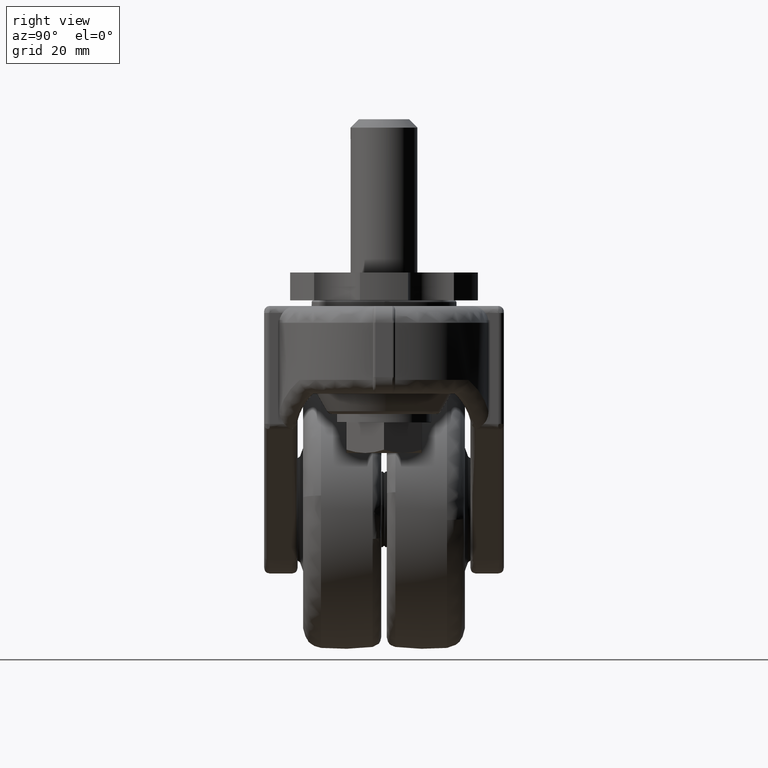
[diagram: clean part render]
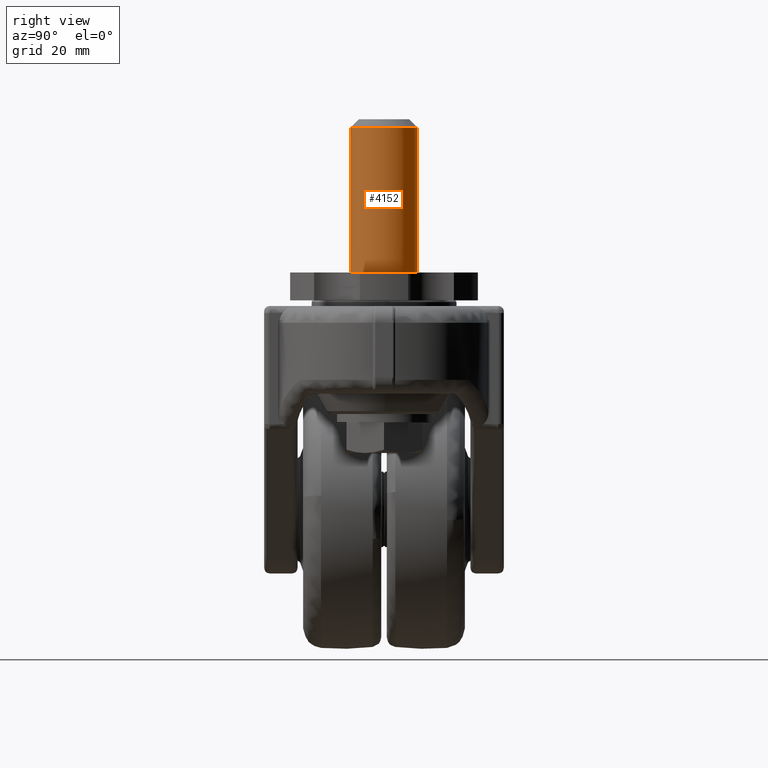
[diagram: same view with one face highlighted and labeled with its STEP entity id]
A machine part, right view. The second image highlights one B-rep face of the part: STEP entity #4152.
In plain terms, the highlighted face is a freeform B-spline surface patch.
Its self-contained STEP definition (entity closure, byte-faithful):
#3831=CARTESIAN_POINT('',(0.790828437082752,11.973912910343619,54.999999999941977));
#3832=VERTEX_POINT('',#3831);
#3833=CARTESIAN_POINT('',(12.0,0.0,55.0));
#3834=VERTEX_POINT('',#3833);
#3835=CARTESIAN_POINT('',(0.790828437082752,11.973912910343618,54.999999999941984));
#3836=CARTESIAN_POINT('',(12.000000000000002,11.233592540541867,54.999999999999993));
#3837=CARTESIAN_POINT('',(12.0,0.0,55.0));
#3845=(BOUNDED_CURVE()B_SPLINE_CURVE(2,(#3835,#3836,#3837),.UNSPECIFIED.,.F.,.U.)B_SPLINE_CURVE_WITH_KNOTS((3,3),(0.261505472939467,0.500000000000000),.UNSPECIFIED.)CURVE()GEOMETRIC_REPRESENTATION_ITEM()RATIONAL_B_SPLINE_CURVE((0.974281704155390,0.720586281199394,1.0))REPRESENTATION_ITEM(''));
#3846=EDGE_CURVE('',#3832,#3834,#3845,.T.);
#3894=CARTESIAN_POINT('',(0.941509149035661,-11.963008004773810,55.0));
#3895=VERTEX_POINT('',#3894);
#3911=CARTESIAN_POINT('',(12.0,0.0,55.0));
#3912=CARTESIAN_POINT('',(12.0,-11.092685899337635,55.0));
#3913=CARTESIAN_POINT('',(0.941509149035661,-11.963008004773807,55.0));
#3921=(BOUNDED_CURVE()B_SPLINE_CURVE(2,(#3911,#3912,#3913),.UNSPECIFIED.,.F.,.U.)B_SPLINE_CURVE_WITH_KNOTS((3,3),(0.500000000000000,0.736331300624126),.UNSPECIFIED.)CURVE()GEOMETRIC_REPRESENTATION_ITEM()RATIONAL_B_SPLINE_CURVE((1.0,0.723120658615320,0.969723356153783))REPRESENTATION_ITEM(''));
#3922=EDGE_CURVE('',#3834,#3895,#3921,.T.);
#3949=CARTESIAN_POINT('',(-0.941509149035661,11.963008004773810,55.0));
#3950=VERTEX_POINT('',#3949);
#3951=CARTESIAN_POINT('',(-0.941509149035661,11.963008004773803,55.0));
#3952=CARTESIAN_POINT('',(-0.471481284394953,11.999999999999995,55.0));
#3953=CARTESIAN_POINT('',(0.0,12.0,55.0));
#3954=CARTESIAN_POINT('',(0.395844486703866,12.000000000000002,54.999999999999993));
#3955=CARTESIAN_POINT('',(0.790828437082752,11.973912910343627,54.999999999941984));
#3963=(BOUNDED_CURVE()B_SPLINE_CURVE(2,(#3951,#3952,#3953,#3954,#3955),.UNSPECIFIED.,.F.,.U.)B_SPLINE_CURVE_WITH_KNOTS((3,2,3),(0.236331300624126,0.250000000000000,0.261505472939467),.UNSPECIFIED.)CURVE()GEOMETRIC_REPRESENTATION_ITEM()RATIONAL_B_SPLINE_CURVE((0.969723356153782,0.983986122571227,1.0,0.986520499987154,0.974281704155391))REPRESENTATION_ITEM(''));
#3964=EDGE_CURVE('',#3950,#3832,#3963,.T.);
#4049=CARTESIAN_POINT('',(-0.941509149035661,11.963008004773810,2.999999999999997));
#4050=VERTEX_POINT('',#4049);
#4064=CARTESIAN_POINT('',(0.941509149035660,-11.963008004773810,2.999999999999997));
#4065=VERTEX_POINT('',#4064);
#4081=CARTESIAN_POINT('',(0.941509149035660,-11.963008004773810,2.999999999999997));
#4082=CARTESIAN_POINT('',(0.941509149035661,-11.963008004773810,55.0));
#4083=QUASI_UNIFORM_CURVE('',1,(#4081,#4082),.UNSPECIFIED.,.F.,.U.);
#4084=EDGE_CURVE('',#4065,#3895,#4083,.T.);
#4089=CARTESIAN_POINT('',(-0.941509149035661,11.963008004773810,2.999999999999997));
#4090=CARTESIAN_POINT('',(-0.941509149035661,11.963008004773810,55.0));
#4091=QUASI_UNIFORM_CURVE('',1,(#4089,#4090),.UNSPECIFIED.,.F.,.U.);
#4092=EDGE_CURVE('',#4050,#3950,#4091,.T.);
#4097=CARTESIAN_POINT('',(0.941509148734146,-11.963008004797530,1.699999999999998));
#4098=CARTESIAN_POINT('',(12.904517153531678,-11.021498856063385,1.699999999999999));
#4099=CARTESIAN_POINT('',(11.963008004797530,0.941509148734146,1.699999999999998));
#4100=CARTESIAN_POINT('',(11.021498856063385,12.904517153531678,1.699999999999999));
#4101=CARTESIAN_POINT('',(-0.941509148734146,11.963008004797530,1.699999999999998));
#4102=CARTESIAN_POINT('',(0.941509148734146,-11.963008004797530,56.332500000000010));
#4103=CARTESIAN_POINT('',(12.904517153531678,-11.021498856063385,56.332500000000017));
#4104=CARTESIAN_POINT('',(11.963008004797530,0.941509148734146,56.332500000000010));
#4105=CARTESIAN_POINT('',(11.021498856063385,12.904517153531678,56.332500000000017));
#4106=CARTESIAN_POINT('',(-0.941509148734146,11.963008004797530,56.332500000000010));
#4114=(BOUNDED_SURFACE()B_SPLINE_SURFACE(2,1,((#4097,#4102),(#4098,#4103),(#4099,#4104),(#4100,#4105),(#4101,#4106)),.UNSPECIFIED.,.F.,.F.,.U.)B_SPLINE_SURFACE_WITH_KNOTS((3,2,3),(2,2),(0.0,19.882250993908560,39.764501987817120),(0.0,54.632500000000007),.UNSPECIFIED.)GEOMETRIC_REPRESENTATION_ITEM()RATIONAL_B_SPLINE_SURFACE(((1.0,1.0),(0.707106781186548,0.707106781186548),(1.0,1.0),(0.707106781186548,0.707106781186548),(1.0,1.0)))REPRESENTATION_ITEM('')SURFACE());
#4115=CARTESIAN_POINT('',(12.0,0.0,3.0));
#4116=VERTEX_POINT('',#4115);
#4117=CARTESIAN_POINT('',(-0.941509149035661,11.963008004773803,2.999999999999997));
#4118=CARTESIAN_POINT('',(-0.471481284394953,11.999999999999995,3.000000000000000));
#4119=CARTESIAN_POINT('',(0.0,12.0,3.0));
#4120=CARTESIAN_POINT('',(12.0,12.0,3.0));
#4121=CARTESIAN_POINT('',(12.0,0.0,3.0));
#4129=(BOUNDED_CURVE()B_SPLINE_CURVE(2,(#4117,#4118,#4119,#4120,#4121),.UNSPECIFIED.,.F.,.U.)B_SPLINE_CURVE_WITH_KNOTS((3,2,3),(0.736331300624126,0.750000000000000,1.0),.UNSPECIFIED.)CURVE()GEOMETRIC_REPRESENTATION_ITEM()RATIONAL_B_SPLINE_CURVE((0.969723356153782,0.983986122571227,1.0,0.707106781186548,1.0))REPRESENTATION_ITEM(''));
#4130=EDGE_CURVE('',#4050,#4116,#4129,.T.);
#4131=ORIENTED_EDGE('',*,*,#4130,.F.);
#4132=ORIENTED_EDGE('',*,*,#4092,.T.);
#4133=ORIENTED_EDGE('',*,*,#3964,.T.);
#4134=ORIENTED_EDGE('',*,*,#3846,.T.);
#4135=ORIENTED_EDGE('',*,*,#3922,.T.);
#4136=ORIENTED_EDGE('',*,*,#4084,.F.);
#4137=CARTESIAN_POINT('',(12.0,0.0,3.0));
#4138=CARTESIAN_POINT('',(12.000000000000002,-11.092685899337598,3.000000000000001));
#4139=CARTESIAN_POINT('',(0.941509149035660,-11.963008004773810,2.999999999999998));
#4147=(BOUNDED_CURVE()B_SPLINE_CURVE(2,(#4137,#4138,#4139),.UNSPECIFIED.,.F.,.U.)B_SPLINE_CURVE_WITH_KNOTS((3,3),(0.0,0.236331300624126),.UNSPECIFIED.)CURVE()GEOMETRIC_REPRESENTATION_ITEM()RATIONAL_B_SPLINE_CURVE((1.0,0.723120658615320,0.969723356153782))REPRESENTATION_ITEM(''));
#4148=EDGE_CURVE('',#4116,#4065,#4147,.T.);
#4149=ORIENTED_EDGE('',*,*,#4148,.F.);
#4150=EDGE_LOOP('',(#4131,#4132,#4133,#4134,#4135,#4136,#4149));
#4151=FACE_OUTER_BOUND('',#4150,.T.);
#4152=ADVANCED_FACE('',(#4151),#4114,.T.);